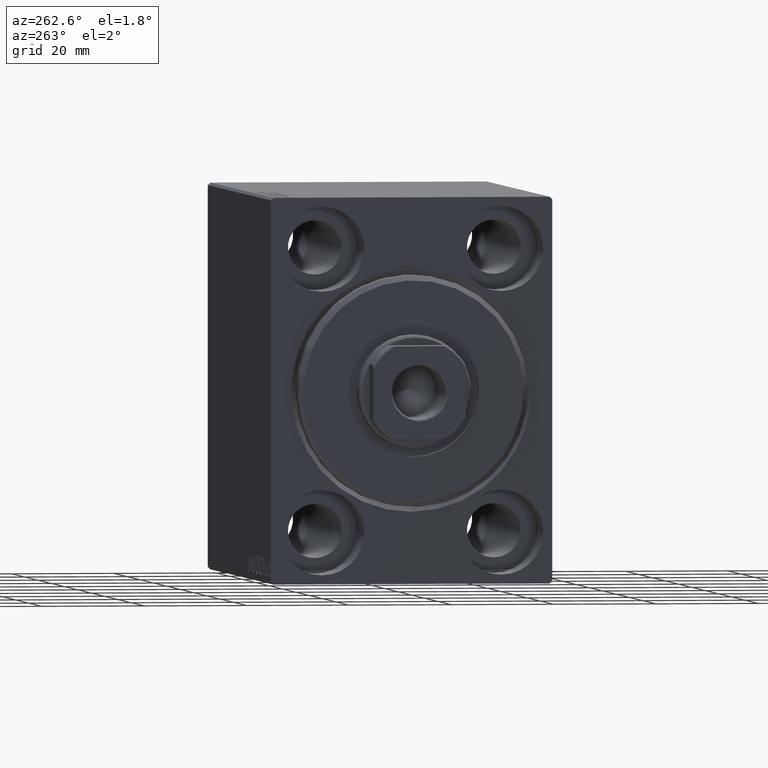
[diagram: clean part render]
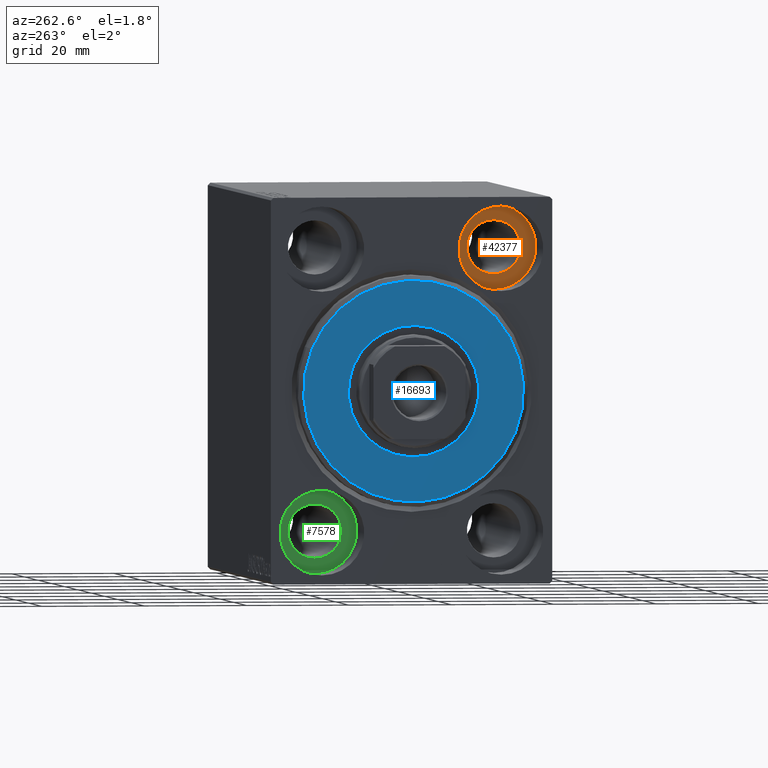
[diagram: same view with three faces highlighted in distinct colors, each labeled with its STEP entity id]
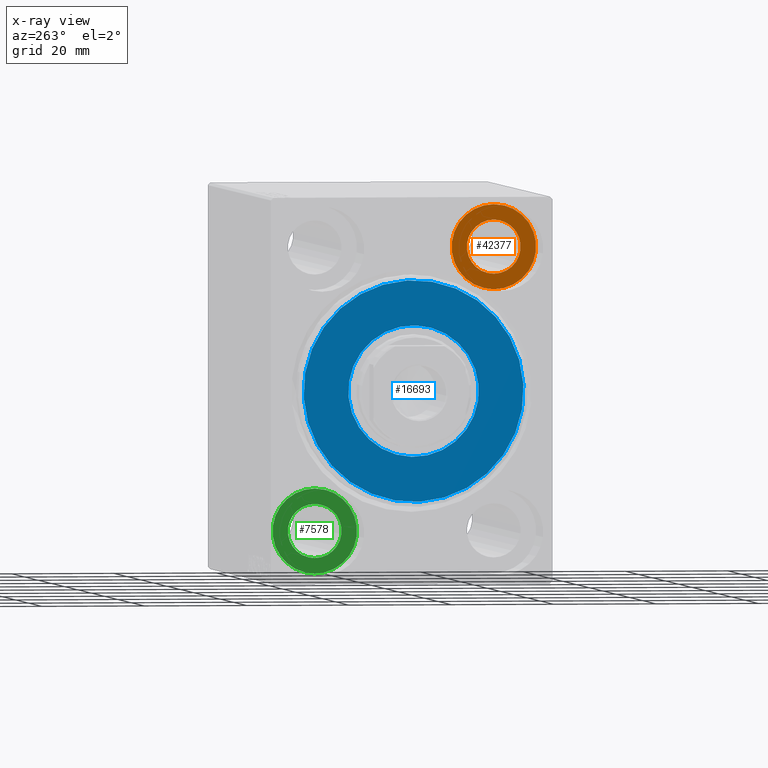
[diagram: x-ray of the same camera — body ghosted, the three highlighted faces saturated]
A machine part, auxiliary view with three faces highlighted in distinct colors.
The next image is the same camera in x-ray (body ghosted, the three faces saturated) — at least one of them is partly hidden behind the body in this view.
Their STEP definitions:

[orange] entity #42377 — the highlighted planar face has unit normal (-1, 0, 0).
#15 = EDGE_CURVE ( 'NONE', #18466, #29214, #40865, .T. ) ;
#79 = EDGE_CURVE ( 'NONE', #15809, #32563, #30321, .T. ) ;
#727 = CARTESIAN_POINT ( 'NONE',  ( 11.00000000000000000, -17.49999999999999645, 27.49999999999999645 ) ) ;
#1819 = DIRECTION ( 'NONE',  ( -1.000000000000000000, 0.000000000000000000, 0.000000000000000000 ) ) ;
#4001 = CARTESIAN_POINT ( 'NONE',  ( 11.00000000000000000, 0.000000000000000000, 0.000000000000000000 ) ) ;
#5113 = CARTESIAN_POINT ( 'NONE',  ( 10.99999999999999645, -17.49999999999999645, 27.49999999999999645 ) ) ;
#5220 = CIRCLE ( 'NONE', #29113, 8.249999999999992895 ) ;
#7462 = CARTESIAN_POINT ( 'NONE',  ( 10.99999999999999645, -17.49999999999999645, 32.74999999999999289 ) ) ;
#7805 = AXIS2_PLACEMENT_3D ( 'NONE', #16871, #19732, #13357 ) ;
#8212 = DIRECTION ( 'NONE',  ( 0.000000000000000000, 0.000000000000000000, 1.000000000000000000 ) ) ;
#9760 = ORIENTED_EDGE ( 'NONE', *, *, #15, .F. ) ;
#10312 = CARTESIAN_POINT ( 'NONE',  ( 11.00000000000000000, -17.49999999999999645, 35.74999999999999289 ) ) ;
#10825 = FACE_OUTER_BOUND ( 'NONE', #37477, .T. ) ;
#11054 = FACE_BOUND ( 'NONE', #41264, .T. ) ;
#11273 = DIRECTION ( 'NONE',  ( -1.000000000000000000, 0.000000000000000000, 0.000000000000000000 ) ) ;
#11299 = DIRECTION ( 'NONE',  ( -1.000000000000000000, 0.000000000000000000, 0.000000000000000000 ) ) ;
#13357 = DIRECTION ( 'NONE',  ( 0.000000000000000000, 0.000000000000000000, 1.000000000000000000 ) ) ;
#13779 = DIRECTION ( 'NONE',  ( 0.000000000000000000, 0.000000000000000000, 1.000000000000000000 ) ) ;
#15511 = ORIENTED_EDGE ( 'NONE', *, *, #37091, .F. ) ;
#15809 = VERTEX_POINT ( 'NONE', #22206 ) ;
#16223 = ORIENTED_EDGE ( 'NONE', *, *, #35082, .T. ) ;
#16871 = CARTESIAN_POINT ( 'NONE',  ( 10.99999999999999645, -17.49999999999999645, 27.49999999999999645 ) ) ;
#17935 = DIRECTION ( 'NONE',  ( -1.000000000000000000, 0.000000000000000000, 0.000000000000000000 ) ) ;
#18466 = VERTEX_POINT ( 'NONE', #7462 ) ;
#19732 = DIRECTION ( 'NONE',  ( -1.000000000000000000, 0.000000000000000000, 0.000000000000000000 ) ) ;
#21527 = AXIS2_PLACEMENT_3D ( 'NONE', #4001, #11273, #41016 ) ;
#22206 = CARTESIAN_POINT ( 'NONE',  ( 11.00000000000000000, -17.49999999999999645, 19.25000000000000000 ) ) ;
#22498 = CARTESIAN_POINT ( 'NONE',  ( 10.99999999999999645, -17.49999999999999645, 22.25000000000000000 ) ) ;
#27053 = AXIS2_PLACEMENT_3D ( 'NONE', #5113, #1819, #8212 ) ;
#28061 = CARTESIAN_POINT ( 'NONE',  ( 11.00000000000000000, -17.49999999999999645, 27.49999999999999645 ) ) ;
#29113 = AXIS2_PLACEMENT_3D ( 'NONE', #727, #11299, #34866 ) ;
#29214 = VERTEX_POINT ( 'NONE', #22498 ) ;
#30321 = CIRCLE ( 'NONE', #32442, 8.249999999999992895 ) ;
#30616 = ORIENTED_EDGE ( 'NONE', *, *, #79, .T. ) ;
#31295 = CIRCLE ( 'NONE', #27053, 5.249999999999997335 ) ;
#32442 = AXIS2_PLACEMENT_3D ( 'NONE', #28061, #17935, #13779 ) ;
#32563 = VERTEX_POINT ( 'NONE', #10312 ) ;
#34866 = DIRECTION ( 'NONE',  ( 0.000000000000000000, 0.000000000000000000, 1.000000000000000000 ) ) ;
#35082 = EDGE_CURVE ( 'NONE', #32563, #15809, #5220, .T. ) ;
#37091 = EDGE_CURVE ( 'NONE', #29214, #18466, #31295, .T. ) ;
#37477 = EDGE_LOOP ( 'NONE', ( #16223, #30616 ) ) ;
#40865 = CIRCLE ( 'NONE', #7805, 5.249999999999997335 ) ;
#41016 = DIRECTION ( 'NONE',  ( 0.000000000000000000, 0.000000000000000000, 1.000000000000000000 ) ) ;
#41240 = PLANE ( 'NONE',  #21527 ) ;
#41264 = EDGE_LOOP ( 'NONE', ( #9760, #15511 ) ) ;
#42377 = ADVANCED_FACE ( 'NONE', ( #11054, #10825 ), #41240, .T. ) ;

[blue] entity #16693 — the highlighted planar face has unit normal (-1, 0, 0).
#573 = DIRECTION ( 'NONE',  ( 1.000000000000000000, -0.000000000000000000, 0.000000000000000000 ) ) ;
#713 = CARTESIAN_POINT ( 'NONE',  ( 3.000000000000000000, 0.000000000000000000, 0.000000000000000000 ) ) ;
#1969 = FACE_BOUND ( 'NONE', #22502, .T. ) ;
#3161 = AXIS2_PLACEMENT_3D ( 'NONE', #24375, #36991, #14059 ) ;
#4984 = VERTEX_POINT ( 'NONE', #26942 ) ;
#6594 = CIRCLE ( 'NONE', #31195, 21.50000000000000355 ) ;
#7247 = ORIENTED_EDGE ( 'NONE', *, *, #13116, .T. ) ;
#8798 = DIRECTION ( 'NONE',  ( 0.000000000000000000, 0.000000000000000000, -1.000000000000000000 ) ) ;
#8809 = EDGE_CURVE ( 'NONE', #23479, #25832, #6594, .T. ) ;
#9798 = CARTESIAN_POINT ( 'NONE',  ( 3.000000000000000000, 0.000000000000000000, 12.75000000000000000 ) ) ;
#12275 = CIRCLE ( 'NONE', #3161, 12.75000000000000000 ) ;
#12554 = FACE_OUTER_BOUND ( 'NONE', #19151, .T. ) ;
#13116 = EDGE_CURVE ( 'NONE', #4984, #13657, #31333, .T. ) ;
#13619 = ORIENTED_EDGE ( 'NONE', *, *, #8809, .T. ) ;
#13657 = VERTEX_POINT ( 'NONE', #9798 ) ;
#14059 = DIRECTION ( 'NONE',  ( 0.000000000000000000, 0.000000000000000000, -1.000000000000000000 ) ) ;
#15563 = CARTESIAN_POINT ( 'NONE',  ( 3.000000000000000000, 0.000000000000000000, 21.50000000000000355 ) ) ;
#16252 = CARTESIAN_POINT ( 'NONE',  ( 3.000000000000000000, 2.694222958124177598E-15, -21.50000000000000355 ) ) ;
#16693 = ADVANCED_FACE ( 'NONE', ( #12554, #1969 ), #25955, .T. ) ;
#18271 = CARTESIAN_POINT ( 'NONE',  ( 3.000000000000000000, 0.000000000000000000, 0.000000000000000000 ) ) ;
#19151 = EDGE_LOOP ( 'NONE', ( #21313, #13619 ) ) ;
#20242 = CIRCLE ( 'NONE', #30129, 21.50000000000000355 ) ;
#21313 = ORIENTED_EDGE ( 'NONE', *, *, #24833, .T. ) ;
#22502 = EDGE_LOOP ( 'NONE', ( #32848, #7247 ) ) ;
#22870 = DIRECTION ( 'NONE',  ( 0.000000000000000000, 0.000000000000000000, -1.000000000000000000 ) ) ;
#23479 = VERTEX_POINT ( 'NONE', #16252 ) ;
#23575 = AXIS2_PLACEMENT_3D ( 'NONE', #18271, #38113, #8798 ) ;
#24375 = CARTESIAN_POINT ( 'NONE',  ( 3.000000000000000000, 0.000000000000000000, 0.000000000000000000 ) ) ;
#24833 = EDGE_CURVE ( 'NONE', #25832, #23479, #20242, .T. ) ;
#25832 = VERTEX_POINT ( 'NONE', #15563 ) ;
#25955 = PLANE ( 'NONE',  #32043 ) ;
#26942 = CARTESIAN_POINT ( 'NONE',  ( 3.000000000000000000, 1.561424668912874914E-15, -12.75000000000000000 ) ) ;
#27202 = CARTESIAN_POINT ( 'NONE',  ( 3.000000000000000000, 0.000000000000000000, 0.000000000000000000 ) ) ;
#27548 = DIRECTION ( 'NONE',  ( 0.000000000000000000, 0.000000000000000000, -1.000000000000000000 ) ) ;
#30129 = AXIS2_PLACEMENT_3D ( 'NONE', #713, #40180, #27548 ) ;
#31195 = AXIS2_PLACEMENT_3D ( 'NONE', #27202, #573, #40883 ) ;
#31333 = CIRCLE ( 'NONE', #23575, 12.75000000000000000 ) ;
#32043 = AXIS2_PLACEMENT_3D ( 'NONE', #40086, #40298, #22870 ) ;
#32848 = ORIENTED_EDGE ( 'NONE', *, *, #35737, .T. ) ;
#35737 = EDGE_CURVE ( 'NONE', #13657, #4984, #12275, .T. ) ;
#36991 = DIRECTION ( 'NONE',  ( -1.000000000000000000, 0.000000000000000000, -0.000000000000000000 ) ) ;
#38113 = DIRECTION ( 'NONE',  ( -1.000000000000000000, 0.000000000000000000, -0.000000000000000000 ) ) ;
#40086 = CARTESIAN_POINT ( 'NONE',  ( 3.000000000000000000, 0.000000000000000000, 0.000000000000000000 ) ) ;
#40180 = DIRECTION ( 'NONE',  ( 1.000000000000000000, -0.000000000000000000, 0.000000000000000000 ) ) ;
#40298 = DIRECTION ( 'NONE',  ( 1.000000000000000000, -0.000000000000000000, 0.000000000000000000 ) ) ;
#40883 = DIRECTION ( 'NONE',  ( 0.000000000000000000, 0.000000000000000000, -1.000000000000000000 ) ) ;

[green] entity #7578 — the highlighted planar face has unit normal (-1, 0, 0).
#94 = CARTESIAN_POINT ( 'NONE',  ( 11.00000000000000000, 17.49999999999999645, -27.50000000000000355 ) ) ;
#253 = EDGE_CURVE ( 'NONE', #38359, #7549, #26778, .T. ) ;
#1021 = DIRECTION ( 'NONE',  ( -1.000000000000000000, 0.000000000000000000, 0.000000000000000000 ) ) ;
#1245 = VERTEX_POINT ( 'NONE', #8154 ) ;
#2287 = ORIENTED_EDGE ( 'NONE', *, *, #39839, .F. ) ;
#4239 = EDGE_CURVE ( 'NONE', #7549, #38359, #35322, .T. ) ;
#4557 = CIRCLE ( 'NONE', #22855, 5.250000000000000888 ) ;
#5179 = CARTESIAN_POINT ( 'NONE',  ( 10.99999999999999645, 17.49999999999999645, -27.50000000000000355 ) ) ;
#6684 = CARTESIAN_POINT ( 'NONE',  ( 10.99999999999999645, 17.49999999999999645, -27.50000000000000355 ) ) ;
#6693 = DIRECTION ( 'NONE',  ( 0.000000000000000000, 0.000000000000000000, 1.000000000000000000 ) ) ;
#7549 = VERTEX_POINT ( 'NONE', #11890 ) ;
#7578 = ADVANCED_FACE ( 'NONE', ( #18709, #42748 ), #42518, .T. ) ;
#8154 = CARTESIAN_POINT ( 'NONE',  ( 10.99999999999999645, 17.49999999999999645, -32.75000000000000000 ) ) ;
#8575 = CARTESIAN_POINT ( 'NONE',  ( 11.00000000000000000, 17.49999999999999645, -27.50000000000000355 ) ) ;
#8907 = DIRECTION ( 'NONE',  ( -1.000000000000000000, 0.000000000000000000, 0.000000000000000000 ) ) ;
#10516 = ORIENTED_EDGE ( 'NONE', *, *, #4239, .T. ) ;
#11335 = AXIS2_PLACEMENT_3D ( 'NONE', #38875, #8907, #34911 ) ;
#11579 = EDGE_CURVE ( 'NONE', #1245, #35698, #4557, .T. ) ;
#11890 = CARTESIAN_POINT ( 'NONE',  ( 11.00000000000000000, 17.49999999999999645, -19.25000000000000355 ) ) ;
#13724 = DIRECTION ( 'NONE',  ( 0.000000000000000000, 0.000000000000000000, 1.000000000000000000 ) ) ;
#18673 = CARTESIAN_POINT ( 'NONE',  ( 11.00000000000000000, 17.49999999999999645, -35.75000000000000711 ) ) ;
#18709 = FACE_BOUND ( 'NONE', #31865, .T. ) ;
#22435 = DIRECTION ( 'NONE',  ( -1.000000000000000000, 0.000000000000000000, 0.000000000000000000 ) ) ;
#22855 = AXIS2_PLACEMENT_3D ( 'NONE', #6684, #41254, #13724 ) ;
#26778 = CIRCLE ( 'NONE', #11335, 8.250000000000000000 ) ;
#29942 = CIRCLE ( 'NONE', #39810, 5.250000000000000888 ) ;
#30256 = DIRECTION ( 'NONE',  ( -1.000000000000000000, 0.000000000000000000, 0.000000000000000000 ) ) ;
#31865 = EDGE_LOOP ( 'NONE', ( #2287, #33988 ) ) ;
#31927 = DIRECTION ( 'NONE',  ( 0.000000000000000000, 0.000000000000000000, 1.000000000000000000 ) ) ;
#33988 = ORIENTED_EDGE ( 'NONE', *, *, #11579, .F. ) ;
#34324 = CARTESIAN_POINT ( 'NONE',  ( 10.99999999999999645, 17.49999999999999645, -22.25000000000000355 ) ) ;
#34635 = AXIS2_PLACEMENT_3D ( 'NONE', #94, #30256, #6693 ) ;
#34911 = DIRECTION ( 'NONE',  ( 0.000000000000000000, 0.000000000000000000, 1.000000000000000000 ) ) ;
#35322 = CIRCLE ( 'NONE', #34635, 8.250000000000000000 ) ;
#35698 = VERTEX_POINT ( 'NONE', #34324 ) ;
#38250 = AXIS2_PLACEMENT_3D ( 'NONE', #8575, #22435, #31927 ) ;
#38359 = VERTEX_POINT ( 'NONE', #18673 ) ;
#38875 = CARTESIAN_POINT ( 'NONE',  ( 11.00000000000000000, 17.49999999999999645, -27.50000000000000355 ) ) ;
#39810 = AXIS2_PLACEMENT_3D ( 'NONE', #5179, #1021, #41115 ) ;
#39839 = EDGE_CURVE ( 'NONE', #35698, #1245, #29942, .T. ) ;
#41115 = DIRECTION ( 'NONE',  ( 0.000000000000000000, 0.000000000000000000, 1.000000000000000000 ) ) ;
#41254 = DIRECTION ( 'NONE',  ( -1.000000000000000000, 0.000000000000000000, 0.000000000000000000 ) ) ;
#41435 = ORIENTED_EDGE ( 'NONE', *, *, #253, .T. ) ;
#42321 = EDGE_LOOP ( 'NONE', ( #10516, #41435 ) ) ;
#42518 = PLANE ( 'NONE',  #38250 ) ;
#42748 = FACE_OUTER_BOUND ( 'NONE', #42321, .T. ) ;